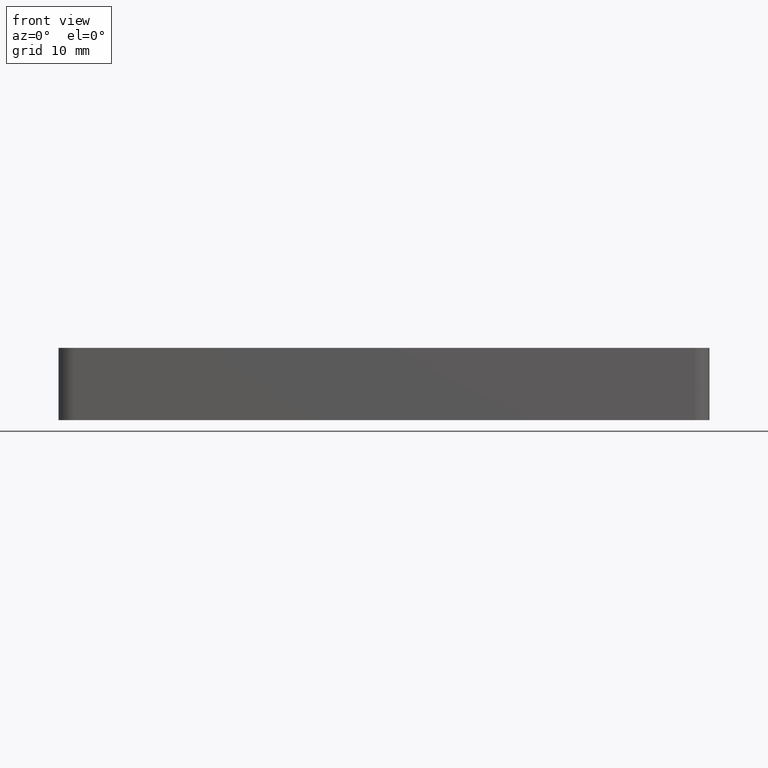
[diagram: clean part render]
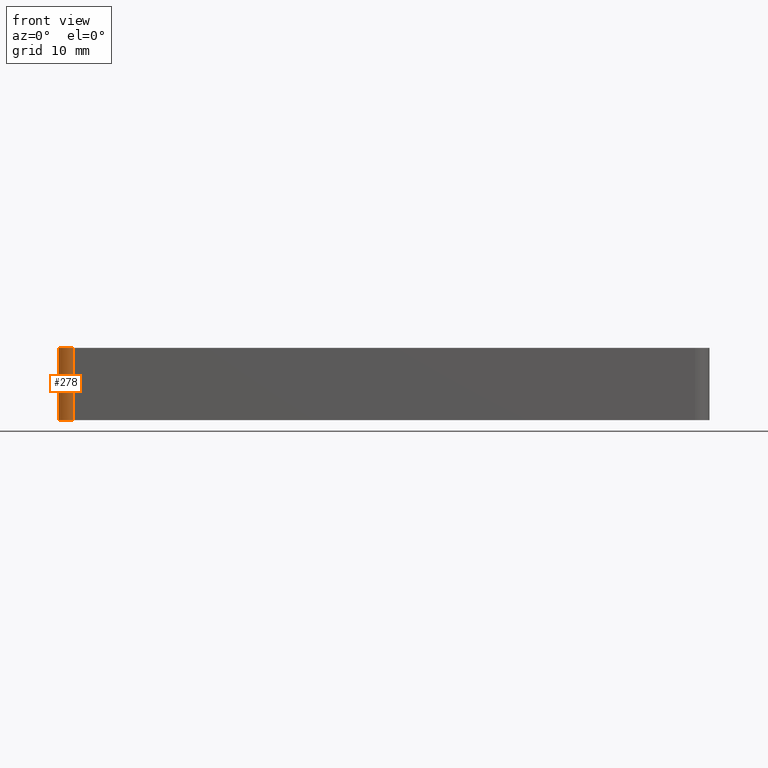
[diagram: same view with one face highlighted and labeled with its STEP entity id]
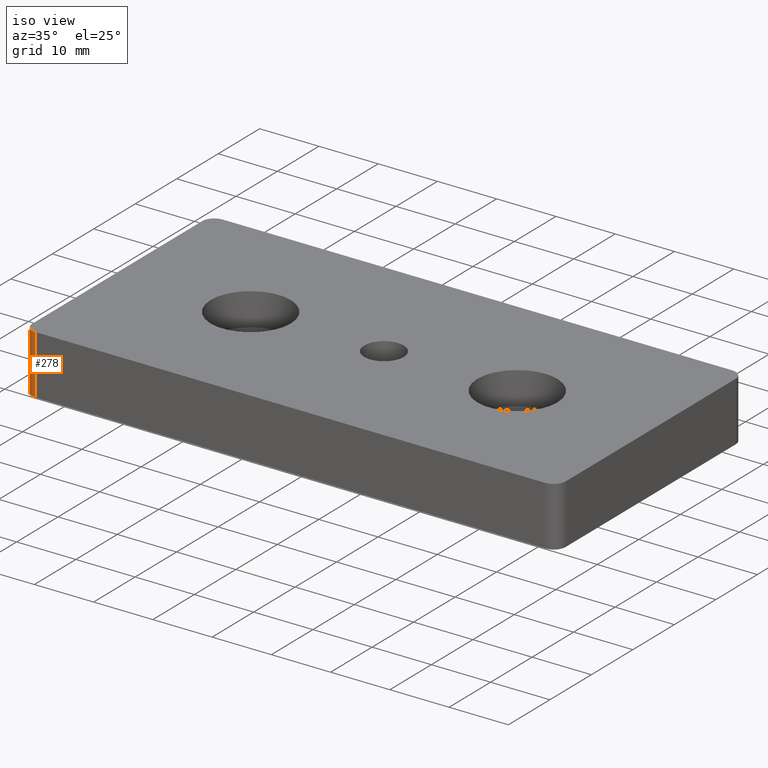
[diagram: same view with one face highlighted and labeled with its STEP entity id]
A machine part, front view. The second image highlights one B-rep face of the part: STEP entity #278.
A second angle (iso view) of the same face is appended — the face is thin or edge-on in the first view.
In plain terms, the highlighted cylindrical surface (edge-blend (fillet) strip) has radius 2 mm, axis along (0, 0, 1).
Its self-contained STEP definition (entity closure, byte-faithful):
#16=LINE('',#446,#32);
#17=LINE('',#449,#33);
#32=VECTOR('',#365,10.);
#33=VECTOR('',#368,10.);
#76=FACE_OUTER_BOUND('',#100,.T.);
#100=EDGE_LOOP('',(#208,#209,#210,#211));
#126=CIRCLE('',#308,2.);
#127=CIRCLE('',#309,2.);
#144=VERTEX_POINT('',#442);
#145=VERTEX_POINT('',#443);
#146=VERTEX_POINT('',#445);
#147=VERTEX_POINT('',#447);
#170=EDGE_CURVE('',#144,#145,#126,.T.);
#171=EDGE_CURVE('',#145,#146,#16,.T.);
#172=EDGE_CURVE('',#146,#147,#127,.T.);
#173=EDGE_CURVE('',#147,#144,#17,.T.);
#208=ORIENTED_EDGE('',*,*,#170,.T.);
#209=ORIENTED_EDGE('',*,*,#171,.T.);
#210=ORIENTED_EDGE('',*,*,#172,.T.);
#211=ORIENTED_EDGE('',*,*,#173,.T.);
#267=CYLINDRICAL_SURFACE('',#307,2.);
#278=ADVANCED_FACE('',(#76),#267,.T.);
#307=AXIS2_PLACEMENT_3D('',#441,#361,#362);
#308=AXIS2_PLACEMENT_3D('',#444,#363,#364);
#309=AXIS2_PLACEMENT_3D('',#448,#366,#367);
#361=DIRECTION('center_axis',(0.,0.,1.));
#362=DIRECTION('ref_axis',(-0.707106781186546,-0.707106781186549,0.));
#363=DIRECTION('center_axis',(0.,0.,-1.));
#364=DIRECTION('ref_axis',(-0.707106781186546,-0.707106781186549,0.));
#365=DIRECTION('',(0.,0.,-1.));
#366=DIRECTION('center_axis',(0.,0.,1.));
#367=DIRECTION('ref_axis',(-0.707106781186546,-0.707106781186549,0.));
#368=DIRECTION('',(0.,0.,1.));
#441=CARTESIAN_POINT('Origin',(-43.,-20.5,0.));
#442=CARTESIAN_POINT('',(-43.,-22.5,10.));
#443=CARTESIAN_POINT('',(-45.,-20.5,10.));
#444=CARTESIAN_POINT('Origin',(-43.,-20.5,10.));
#445=CARTESIAN_POINT('',(-45.,-20.5,0.));
#446=CARTESIAN_POINT('',(-45.,-20.5,0.));
#447=CARTESIAN_POINT('',(-43.,-22.5,0.));
#448=CARTESIAN_POINT('Origin',(-43.,-20.5,0.));
#449=CARTESIAN_POINT('',(-43.,-22.5,0.));